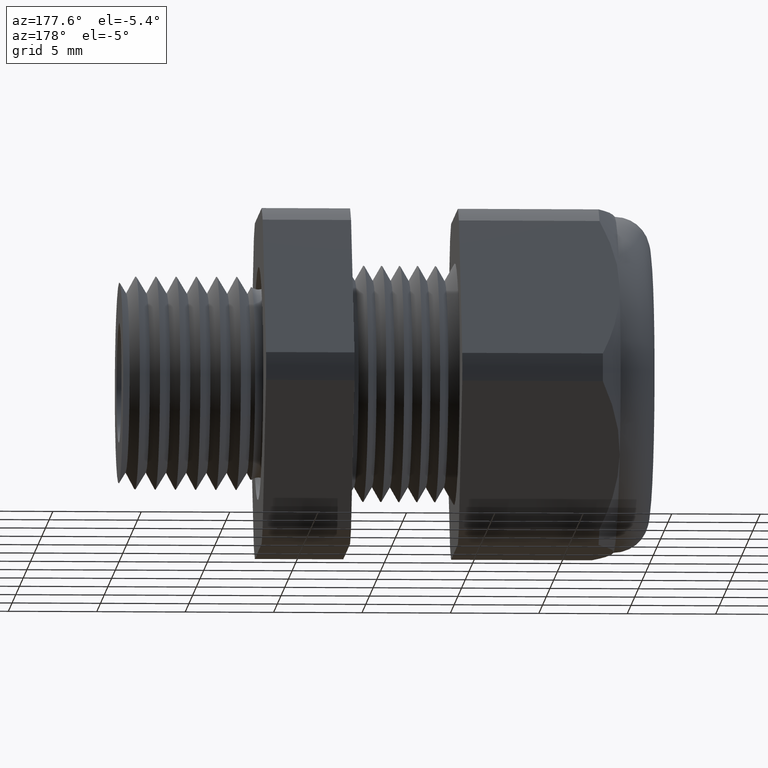
[diagram: clean part render]
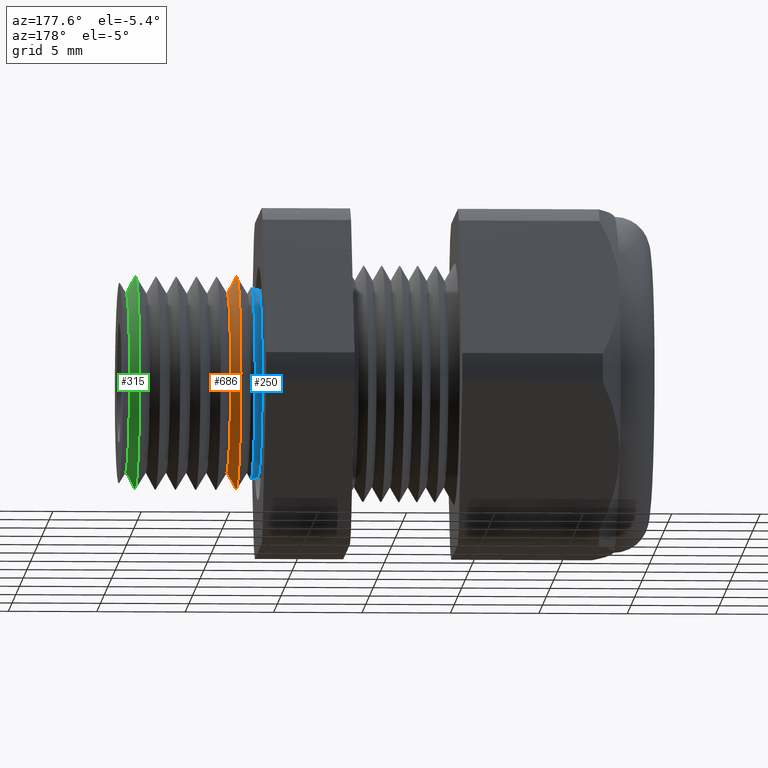
[diagram: same view with three faces highlighted in distinct colors, each labeled with its STEP entity id]
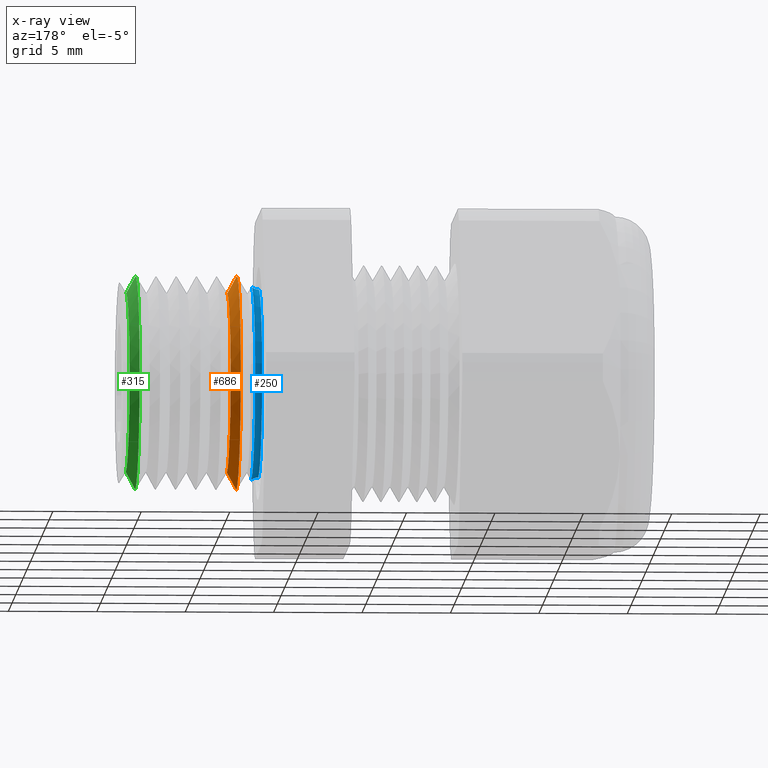
[diagram: x-ray of the same camera — body ghosted, the three highlighted faces saturated]
A machine part, auxiliary view with three faces highlighted in distinct colors.
The next image is the same camera in x-ray (body ghosted, the three faces saturated) — at least one of them is partly hidden behind the body in this view.
Their STEP definitions:

[orange] entity #686 — the highlighted conical surface has half-angle 61.5 deg.
#664 = EDGE_CURVE ( 'NONE', #665, #666, #1982, .T. ) ;
#665 = VERTEX_POINT ( 'NONE', #1978 ) ;
#666 = VERTEX_POINT ( 'NONE', #1977 ) ;
#686 = ADVANCED_FACE ( 'NONE', ( #2003 ), #2001, .T. ) ;
#687 = EDGE_LOOP ( 'NONE', ( #688, #689, #692, #705 ) ) ;
#688 = ORIENTED_EDGE ( 'NONE', *, *, #664, .F. ) ;
#689 = ORIENTED_EDGE ( 'NONE', *, *, #690, .T. ) ;
#690 = EDGE_CURVE ( 'NONE', #665, #691, #2002, .T. ) ;
#691 = VERTEX_POINT ( 'NONE', #1993 ) ;
#692 = ORIENTED_EDGE ( 'NONE', *, *, #693, .F. ) ;
#693 = EDGE_CURVE ( 'NONE', #704, #691, #1992, .T. ) ;
#704 = VERTEX_POINT ( 'NONE', #2028 ) ;
#705 = ORIENTED_EDGE ( 'NONE', *, *, #706, .F. ) ;
#706 = EDGE_CURVE ( 'NONE', #666, #704, #2026, .T. ) ;
#1977 = CARTESIAN_POINT ( 'NONE',  ( -0.2402061035186136000, 0.0000000000000000000, 0.1993353233092550500 ) ) ;
#1978 = CARTESIAN_POINT ( 'NONE',  ( -0.2402061035186136000, 2.679565062964199900E-017, -0.1993353233092550500 ) ) ;
#1979 = DIRECTION ( 'NONE',  ( 0.0000000000000000000, 0.0000000000000000000, -1.000000000000000000 ) ) ;
#1980 = DIRECTION ( 'NONE',  ( 1.000000000000000000, 0.0000000000000000000, 0.0000000000000000000 ) ) ;
#1981 = AXIS2_PLACEMENT_3D ( 'NONE', #1988, #1980, #1979 ) ;
#1982 = CIRCLE ( 'NONE', #1981, 0.1993353233092550500 ) ;
#1988 = CARTESIAN_POINT ( 'NONE',  ( -0.2402061035186136000, 0.0000000000000000000, 0.0000000000000000000 ) ) ;
#1992 = CIRCLE ( 'NONE', #2055, 0.2382708607480287000 ) ;
#1993 = CARTESIAN_POINT ( 'NONE',  ( -0.2613463754894814200, 0.0000000000000000000, -0.2382708607480286700 ) ) ;
#1994 = DIRECTION ( 'NONE',  ( -0.4771587602596068500, 1.076240564057395800E-016, -0.8788171126619661600 ) ) ;
#1995 = VECTOR ( 'NONE', #1994, 39.37007874015748100 ) ;
#1996 = CARTESIAN_POINT ( 'NONE',  ( -0.2649999999999999600, 3.000384657911016100E-017, -0.2450000000000000500 ) ) ;
#1997 = DIRECTION ( 'NONE',  ( 0.0000000000000000000, 0.0000000000000000000, 1.000000000000000000 ) ) ;
#1998 = DIRECTION ( 'NONE',  ( -1.000000000000000000, 0.0000000000000000000, 0.0000000000000000000 ) ) ;
#1999 = CARTESIAN_POINT ( 'NONE',  ( -0.2649999999999999600, 0.0000000000000000000, 0.0000000000000000000 ) ) ;
#2000 = AXIS2_PLACEMENT_3D ( 'NONE', #1999, #1998, #1997 ) ;
#2001 = CONICAL_SURFACE ( 'NONE', #2000, 0.2450000000000000500, 1.073377489976514500 ) ;
#2002 = LINE ( 'NONE', #1996, #1995 ) ;
#2003 = FACE_OUTER_BOUND ( 'NONE', #687, .T. ) ;
#2023 = DIRECTION ( 'NONE',  ( -0.4771587602596068500, 0.0000000000000000000, 0.8788171126619661600 ) ) ;
#2024 = VECTOR ( 'NONE', #2023, 39.37007874015748100 ) ;
#2025 = CARTESIAN_POINT ( 'NONE',  ( -0.2649999999999999600, 0.0000000000000000000, 0.2450000000000000500 ) ) ;
#2026 = LINE ( 'NONE', #2025, #2024 ) ;
#2028 = CARTESIAN_POINT ( 'NONE',  ( -0.2613463754894814200, 2.917976469451580200E-017, 0.2382708607480286700 ) ) ;
#2052 = DIRECTION ( 'NONE',  ( 0.0000000000000000000, 0.0000000000000000000, 1.000000000000000000 ) ) ;
#2053 = DIRECTION ( 'NONE',  ( -1.000000000000000000, 0.0000000000000000000, 0.0000000000000000000 ) ) ;
#2054 = CARTESIAN_POINT ( 'NONE',  ( -0.2613463754894814200, 0.0000000000000000000, 0.0000000000000000000 ) ) ;
#2055 = AXIS2_PLACEMENT_3D ( 'NONE', #2054, #2053, #2052 ) ;

[blue] entity #250 — the highlighted toroidal blend (fillet) surface has major radius 5.969 mm and minor (blend) radius 0.635 mm.
#188 = EDGE_CURVE ( 'NONE', #201, #210, #1103, .T. ) ;
#189 = ORIENTED_EDGE ( 'NONE', *, *, #188, .T. ) ;
#201 = VERTEX_POINT ( 'NONE', #1134 ) ;
#210 = VERTEX_POINT ( 'NONE', #1111 ) ;
#232 = VERTEX_POINT ( 'NONE', #1150 ) ;
#234 = ORIENTED_EDGE ( 'NONE', *, *, #254, .F. ) ;
#235 = ORIENTED_EDGE ( 'NONE', *, *, #246, .T. ) ;
#245 = EDGE_LOOP ( 'NONE', ( #251, #189, #234, #235 ) ) ;
#246 = EDGE_CURVE ( 'NONE', #232, #260, #1193, .T. ) ;
#250 = ADVANCED_FACE ( 'NONE', ( #1187 ), #1186, .F. ) ;
#251 = ORIENTED_EDGE ( 'NONE', *, *, #259, .T. ) ;
#254 = EDGE_CURVE ( 'NONE', #232, #210, #1181, .T. ) ;
#259 = EDGE_CURVE ( 'NONE', #260, #201, #1233, .T. ) ;
#260 = VERTEX_POINT ( 'NONE', #1229 ) ;
#1095 = DIRECTION ( 'NONE',  ( 0.0000000000000000000, 0.0000000000000000000, -1.000000000000000000 ) ) ;
#1096 = DIRECTION ( 'NONE',  ( 1.000000000000000000, 0.0000000000000000000, 0.0000000000000000000 ) ) ;
#1097 = CARTESIAN_POINT ( 'NONE',  ( -0.3100000000000000000, 0.0000000000000000000, 0.0000000000000000000 ) ) ;
#1098 = AXIS2_PLACEMENT_3D ( 'NONE', #1097, #1096, #1095 ) ;
#1103 = CIRCLE ( 'NONE', #1098, 0.2100000000000000200 ) ;
#1111 = CARTESIAN_POINT ( 'NONE',  ( -0.3100000000000000000, 2.571758278209442200E-017, 0.2100000000000000200 ) ) ;
#1134 = CARTESIAN_POINT ( 'NONE',  ( -0.3100000000000000000, 0.0000000000000000000, -0.2100000000000000200 ) ) ;
#1150 = CARTESIAN_POINT ( 'NONE',  ( -0.2940969733242087000, 0.0000000000000000000, 0.2157102684687141100 ) ) ;
#1177 = DIRECTION ( 'NONE',  ( 0.0000000000000000000, 1.224646799147353000E-016, 1.000000000000000000 ) ) ;
#1178 = DIRECTION ( 'NONE',  ( 0.0000000000000000000, 1.000000000000000000, -1.224646799147353200E-016 ) ) ;
#1179 = CARTESIAN_POINT ( 'NONE',  ( -0.3100000000000000000, 2.877919977996281100E-017, 0.2350000000000000400 ) ) ;
#1180 = AXIS2_PLACEMENT_3D ( 'NONE', #1179, #1178, #1177 ) ;
#1181 = CIRCLE ( 'NONE', #1180, 0.02500000000000004000 ) ;
#1182 = DIRECTION ( 'NONE',  ( 0.0000000000000000000, 0.0000000000000000000, -1.000000000000000000 ) ) ;
#1183 = DIRECTION ( 'NONE',  ( 1.000000000000000000, 0.0000000000000000000, 0.0000000000000000000 ) ) ;
#1184 = CARTESIAN_POINT ( 'NONE',  ( -0.3100000000000000000, 0.0000000000000000000, 0.0000000000000000000 ) ) ;
#1185 = AXIS2_PLACEMENT_3D ( 'NONE', #1184, #1183, #1182 ) ;
#1186 = TOROIDAL_SURFACE ( 'NONE', #1185, 0.2350000000000000400, 0.02500000000000002900 ) ;
#1187 = FACE_OUTER_BOUND ( 'NONE', #245, .T. ) ;
#1189 = DIRECTION ( 'NONE',  ( 0.0000000000000000000, 0.0000000000000000000, 1.000000000000000000 ) ) ;
#1190 = DIRECTION ( 'NONE',  ( -1.000000000000000000, 0.0000000000000000000, 0.0000000000000000000 ) ) ;
#1191 = CARTESIAN_POINT ( 'NONE',  ( -0.2940969733242087000, 0.0000000000000000000, 0.0000000000000000000 ) ) ;
#1192 = AXIS2_PLACEMENT_3D ( 'NONE', #1191, #1190, #1189 ) ;
#1193 = CIRCLE ( 'NONE', #1192, 0.2157102684687141100 ) ;
#1229 = CARTESIAN_POINT ( 'NONE',  ( -0.2940969733242087000, 2.641688898234269300E-017, -0.2157102684687141100 ) ) ;
#1230 = DIRECTION ( 'NONE',  ( 0.0000000000000000000, 0.0000000000000000000, -1.000000000000000000 ) ) ;
#1231 = DIRECTION ( 'NONE',  ( 0.0000000000000000000, -1.000000000000000000, 0.0000000000000000000 ) ) ;
#1232 = AXIS2_PLACEMENT_3D ( 'NONE', #1237, #1231, #1230 ) ;
#1233 = CIRCLE ( 'NONE', #1232, 0.02500000000000004000 ) ;
#1237 = CARTESIAN_POINT ( 'NONE',  ( -0.3100000000000000000, 0.0000000000000000000, -0.2350000000000000400 ) ) ;

[green] entity #315 — the highlighted conical surface has half-angle 61.5 deg.
#288 = VERTEX_POINT ( 'NONE', #1253 ) ;
#292 = EDGE_CURVE ( 'NONE', #339, #323, #1242, .T. ) ;
#315 = ADVANCED_FACE ( 'NONE', ( #1318 ), #1316, .T. ) ;
#316 = EDGE_LOOP ( 'NONE', ( #317, #318, #321, #324 ) ) ;
#317 = ORIENTED_EDGE ( 'NONE', *, *, #338, .F. ) ;
#318 = ORIENTED_EDGE ( 'NONE', *, *, #319, .T. ) ;
#319 = EDGE_CURVE ( 'NONE', #288, #320, #1317, .T. ) ;
#320 = VERTEX_POINT ( 'NONE', #1308 ) ;
#321 = ORIENTED_EDGE ( 'NONE', *, *, #322, .T. ) ;
#322 = EDGE_CURVE ( 'NONE', #320, #323, #1307, .T. ) ;
#323 = VERTEX_POINT ( 'NONE', #1302 ) ;
#324 = ORIENTED_EDGE ( 'NONE', *, *, #292, .F. ) ;
#338 = EDGE_CURVE ( 'NONE', #288, #339, #1336, .T. ) ;
#339 = VERTEX_POINT ( 'NONE', #1332 ) ;
#1239 = DIRECTION ( 'NONE',  ( -0.4771587602596068500, 0.0000000000000000000, 0.8788171126619661600 ) ) ;
#1240 = VECTOR ( 'NONE', #1239, 39.37007874015748100 ) ;
#1241 = CARTESIAN_POINT ( 'NONE',  ( -0.03999999999999998000, 0.0000000000000000000, 0.2450000000000000500 ) ) ;
#1242 = LINE ( 'NONE', #1241, #1240 ) ;
#1253 = CARTESIAN_POINT ( 'NONE',  ( -0.01520610351861361600, 2.676852274143820700E-017, -0.1993353233092550500 ) ) ;
#1302 = CARTESIAN_POINT ( 'NONE',  ( -0.03610582872073700400, 0.0000000000000000000, 0.2378278287126257800 ) ) ;
#1303 = DIRECTION ( 'NONE',  ( 0.0000000000000000000, 0.0000000000000000000, 1.000000000000000000 ) ) ;
#1304 = DIRECTION ( 'NONE',  ( 1.000000000000000000, 0.0000000000000000000, 0.0000000000000000000 ) ) ;
#1305 = CARTESIAN_POINT ( 'NONE',  ( -0.03610582872073700400, 0.0000000000000000000, 0.0000000000000000000 ) ) ;
#1306 = AXIS2_PLACEMENT_3D ( 'NONE', #1305, #1304, #1303 ) ;
#1307 = CIRCLE ( 'NONE', #1306, 0.2378278287126257800 ) ;
#1308 = CARTESIAN_POINT ( 'NONE',  ( -0.03610582872073700400, 2.912631696487582500E-017, -0.2378278287126257800 ) ) ;
#1309 = DIRECTION ( 'NONE',  ( -0.4771587602596068500, 1.076240564057395800E-016, -0.8788171126619661600 ) ) ;
#1310 = VECTOR ( 'NONE', #1309, 39.37007874015748100 ) ;
#1311 = CARTESIAN_POINT ( 'NONE',  ( -0.03999999999999998000, 3.000384657911016100E-017, -0.2450000000000000500 ) ) ;
#1312 = DIRECTION ( 'NONE',  ( 0.0000000000000000000, 0.0000000000000000000, 1.000000000000000000 ) ) ;
#1313 = DIRECTION ( 'NONE',  ( -1.000000000000000000, 0.0000000000000000000, 0.0000000000000000000 ) ) ;
#1314 = CARTESIAN_POINT ( 'NONE',  ( -0.03999999999999998000, 0.0000000000000000000, 0.0000000000000000000 ) ) ;
#1315 = AXIS2_PLACEMENT_3D ( 'NONE', #1314, #1313, #1312 ) ;
#1316 = CONICAL_SURFACE ( 'NONE', #1315, 0.2450000000000000500, 1.073377489976514500 ) ;
#1317 = LINE ( 'NONE', #1311, #1310 ) ;
#1318 = FACE_OUTER_BOUND ( 'NONE', #316, .T. ) ;
#1332 = CARTESIAN_POINT ( 'NONE',  ( -0.01520610351861361600, 0.0000000000000000000, 0.1993353233092550500 ) ) ;
#1333 = DIRECTION ( 'NONE',  ( 0.0000000000000000000, 0.0000000000000000000, -1.000000000000000000 ) ) ;
#1334 = DIRECTION ( 'NONE',  ( 1.000000000000000000, 0.0000000000000000000, 0.0000000000000000000 ) ) ;
#1335 = AXIS2_PLACEMENT_3D ( 'NONE', #1342, #1334, #1333 ) ;
#1336 = CIRCLE ( 'NONE', #1335, 0.1993353233092550500 ) ;
#1342 = CARTESIAN_POINT ( 'NONE',  ( -0.01520610351861361600, 0.0000000000000000000, 0.0000000000000000000 ) ) ;